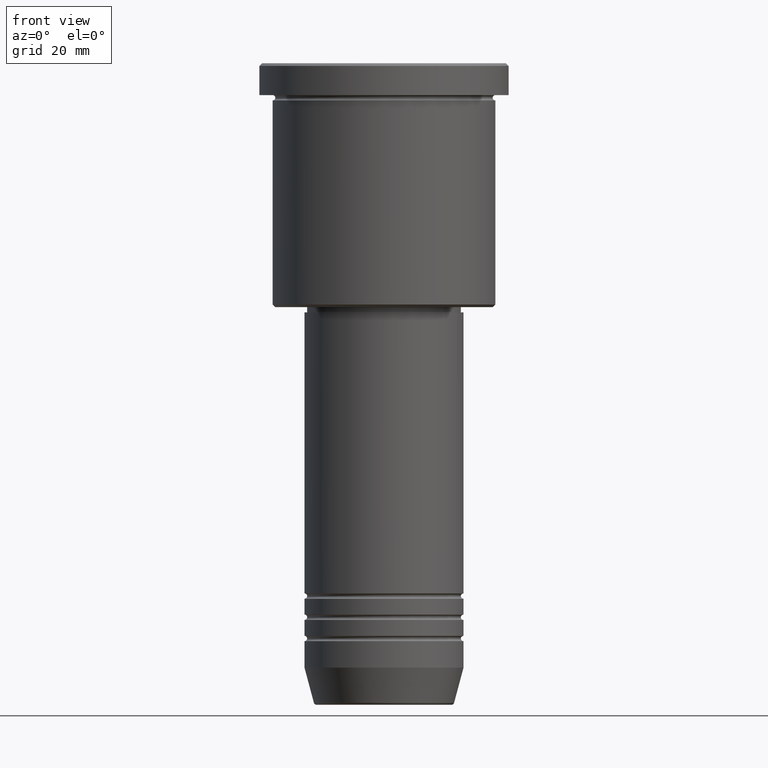
[diagram: clean part render]
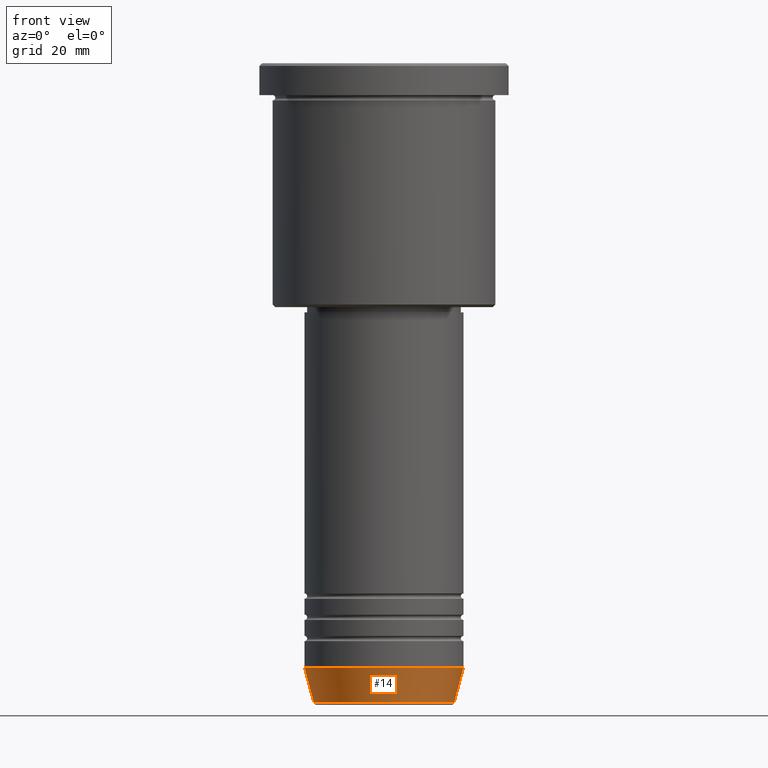
[diagram: same view with one face highlighted and labeled with its STEP entity id]
A machine part, front view. The second image highlights one B-rep face of the part: STEP entity #14.
In plain terms, the highlighted conical surface has half-angle 15 deg.
Its self-contained STEP definition (entity closure, byte-faithful):
#14 = ADVANCED_FACE ( 'NONE', ( #1058 ), #667, .T. ) ;
#36 = CARTESIAN_POINT ( 'NONE',  ( -15.00000000000000000, 1.836970198721029589E-15, -114.0000000000000000 ) ) ;
#104 = CIRCLE ( 'NONE', #656, 15.00000000000000000 ) ;
#117 = CARTESIAN_POINT ( 'NONE',  ( 0.000000000000000000, 0.000000000000000000, -120.6294095225512422 ) ) ;
#127 = EDGE_LOOP ( 'NONE', ( #131, #469, #937, #580 ) ) ;
#131 = ORIENTED_EDGE ( 'NONE', *, *, #348, .F. ) ;
#150 = DIRECTION ( 'NONE',  ( -0.000000000000000000, -0.000000000000000000, 1.000000000000000000 ) ) ;
#175 = CARTESIAN_POINT ( 'NONE',  ( 13.22365507213719305, 0.000000000000000000, -120.6294095225512422 ) ) ;
#183 = DIRECTION ( 'NONE',  ( -0.000000000000000000, -0.000000000000000000, 1.000000000000000000 ) ) ;
#253 = DIRECTION ( 'NONE',  ( 0.2588190451025213501, 0.000000000000000000, 0.9659258262890680902 ) ) ;
#290 = DIRECTION ( 'NONE',  ( 1.000000000000000000, 0.000000000000000000, 0.000000000000000000 ) ) ;
#334 = CARTESIAN_POINT ( 'NONE',  ( 15.00000000000000000, 0.000000000000000000, -114.0000000000000000 ) ) ;
#337 = VECTOR ( 'NONE', #1124, 1000.000000000000000 ) ;
#348 = EDGE_CURVE ( 'NONE', #404, #620, #1032, .T. ) ;
#388 = CARTESIAN_POINT ( 'NONE',  ( -15.00000000000000000, 1.836970198721029589E-15, -114.0000000000000000 ) ) ;
#404 = VERTEX_POINT ( 'NONE', #1062 ) ;
#466 = VERTEX_POINT ( 'NONE', #175 ) ;
#469 = ORIENTED_EDGE ( 'NONE', *, *, #650, .T. ) ;
#558 = CIRCLE ( 'NONE', #671, 13.22365507213719305 ) ;
#580 = ORIENTED_EDGE ( 'NONE', *, *, #1093, .F. ) ;
#613 = AXIS2_PLACEMENT_3D ( 'NONE', #960, #150, #718 ) ;
#620 = VERTEX_POINT ( 'NONE', #388 ) ;
#650 = EDGE_CURVE ( 'NONE', #404, #466, #558, .T. ) ;
#656 = AXIS2_PLACEMENT_3D ( 'NONE', #716, #1059, #1167 ) ;
#667 = CONICAL_SURFACE ( 'NONE', #613, 15.00000000000000000, 0.2617993877991500740 ) ;
#671 = AXIS2_PLACEMENT_3D ( 'NONE', #117, #183, #290 ) ;
#716 = CARTESIAN_POINT ( 'NONE',  ( 0.000000000000000000, 0.000000000000000000, -114.0000000000000000 ) ) ;
#718 = DIRECTION ( 'NONE',  ( 1.000000000000000000, 0.000000000000000000, 0.000000000000000000 ) ) ;
#856 = CARTESIAN_POINT ( 'NONE',  ( 15.00000000000000000, 0.000000000000000000, -114.0000000000000000 ) ) ;
#893 = VECTOR ( 'NONE', #253, 1000.000000000000000 ) ;
#937 = ORIENTED_EDGE ( 'NONE', *, *, #1173, .T. ) ;
#946 = VERTEX_POINT ( 'NONE', #856 ) ;
#960 = CARTESIAN_POINT ( 'NONE',  ( 0.000000000000000000, 0.000000000000000000, -114.0000000000000000 ) ) ;
#1032 = LINE ( 'NONE', #36, #337 ) ;
#1058 = FACE_OUTER_BOUND ( 'NONE', #127, .T. ) ;
#1059 = DIRECTION ( 'NONE',  ( -0.000000000000000000, -0.000000000000000000, 1.000000000000000000 ) ) ;
#1062 = CARTESIAN_POINT ( 'NONE',  ( -13.22365507213719305, 1.728200442216588780E-15, -120.6294095225512422 ) ) ;
#1069 = LINE ( 'NONE', #334, #893 ) ;
#1093 = EDGE_CURVE ( 'NONE', #620, #946, #104, .T. ) ;
#1124 = DIRECTION ( 'NONE',  ( -0.2588190451025213501, 3.169619151431772337E-17, 0.9659258262890680902 ) ) ;
#1167 = DIRECTION ( 'NONE',  ( 1.000000000000000000, 0.000000000000000000, 0.000000000000000000 ) ) ;
#1173 = EDGE_CURVE ( 'NONE', #466, #946, #1069, .T. ) ;